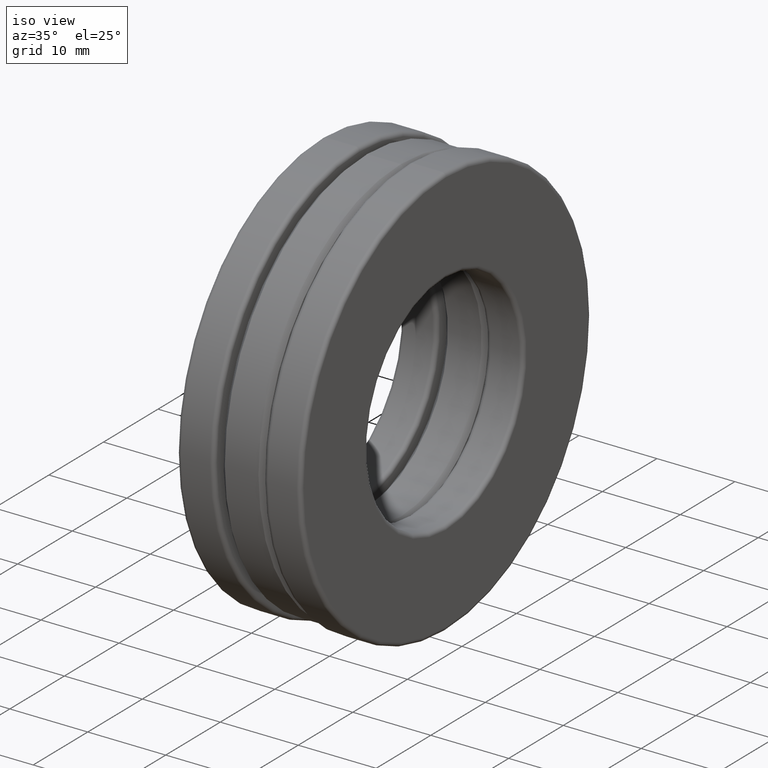
[diagram: clean part render]
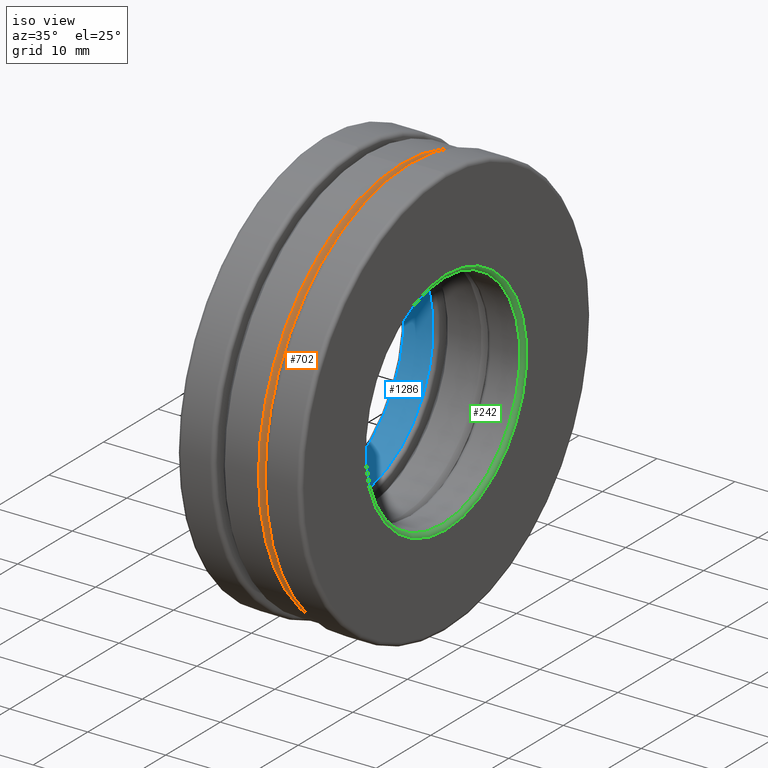
[diagram: same view with three faces highlighted in distinct colors, each labeled with its STEP entity id]
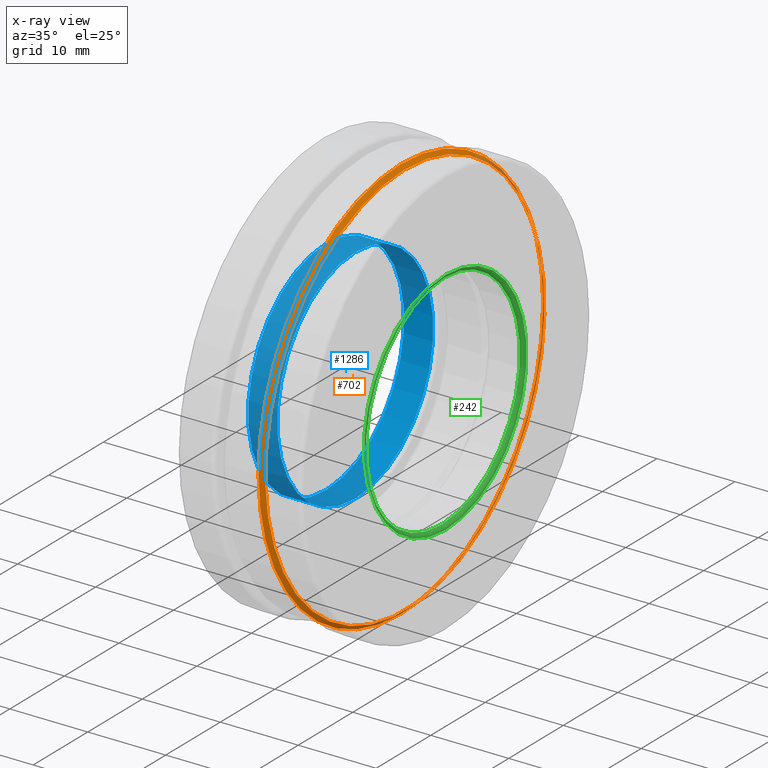
[diagram: x-ray of the same camera — body ghosted, the three highlighted faces saturated]
A machine part, iso view with three faces highlighted in distinct colors.
The next image is the same camera in x-ray (body ghosted, the three faces saturated) — at least one of them is partly hidden behind the body in this view.
Their STEP definitions:

[orange] entity #702 — the highlighted conical surface has half-angle 45 deg.
#7 = FACE_BOUND ( 'NONE', #813, .T. ) ;
#13 = CARTESIAN_POINT ( 'NONE',  ( 0.1050000000000000100, 0.0000000000000000000, 0.0000000000000000000 ) ) ;
#105 = CIRCLE ( 'NONE', #836, 1.006874999999999700 ) ;
#187 = EDGE_CURVE ( 'NONE', #752, #752, #105, .T. ) ;
#223 = FACE_OUTER_BOUND ( 'NONE', #1252, .T. ) ;
#228 = DIRECTION ( 'NONE',  ( 0.0000000000000000000, 0.0000000000000000000, 1.000000000000000000 ) ) ;
#279 = DIRECTION ( 'NONE',  ( 0.0000000000000000000, 0.0000000000000000000, 1.000000000000000000 ) ) ;
#314 = ORIENTED_EDGE ( 'NONE', *, *, #187, .T. ) ;
#344 = DIRECTION ( 'NONE',  ( -1.000000000000000000, -0.0000000000000000000, -0.0000000000000000000 ) ) ;
#508 = ORIENTED_EDGE ( 'NONE', *, *, #1374, .F. ) ;
#516 = VERTEX_POINT ( 'NONE', #887 ) ;
#684 = DIRECTION ( 'NONE',  ( 0.0000000000000000000, 0.0000000000000000000, 1.000000000000000000 ) ) ;
#702 = ADVANCED_FACE ( 'NONE', ( #7, #223 ), #1425, .T. ) ;
#752 = VERTEX_POINT ( 'NONE', #762 ) ;
#762 = CARTESIAN_POINT ( 'NONE',  ( 0.1050000000000000100, 0.0000000000000000000, 1.006874999999999700 ) ) ;
#813 = EDGE_LOOP ( 'NONE', ( #314 ) ) ;
#836 = AXIS2_PLACEMENT_3D ( 'NONE', #13, #344, #228 ) ;
#887 = CARTESIAN_POINT ( 'NONE',  ( 0.08500000000000002000, 0.0000000000000000000, 1.026875000000000000 ) ) ;
#1052 = DIRECTION ( 'NONE',  ( -1.000000000000000000, -0.0000000000000000000, -0.0000000000000000000 ) ) ;
#1077 = CARTESIAN_POINT ( 'NONE',  ( 0.08500000000000002000, 0.0000000000000000000, 0.0000000000000000000 ) ) ;
#1132 = CARTESIAN_POINT ( 'NONE',  ( 0.08500000000000002000, 0.0000000000000000000, 0.0000000000000000000 ) ) ;
#1197 = AXIS2_PLACEMENT_3D ( 'NONE', #1077, #1427, #279 ) ;
#1245 = CIRCLE ( 'NONE', #1197, 1.026875000000000000 ) ;
#1252 = EDGE_LOOP ( 'NONE', ( #508 ) ) ;
#1263 = AXIS2_PLACEMENT_3D ( 'NONE', #1132, #1052, #684 ) ;
#1374 = EDGE_CURVE ( 'NONE', #516, #516, #1245, .T. ) ;
#1425 = CONICAL_SURFACE ( 'NONE', #1263, 1.026875000000000000, 0.7853981633974533900 ) ;
#1427 = DIRECTION ( 'NONE',  ( -1.000000000000000000, -0.0000000000000000000, -0.0000000000000000000 ) ) ;

[blue] entity #1286 — the highlighted cylindrical surface (bore or boss wall) has radius 14.2875 mm, axis along (-1, -0, -0).
#43 = DIRECTION ( 'NONE',  ( -1.000000000000000000, -0.0000000000000000000, -0.0000000000000000000 ) ) ;
#48 = CYLINDRICAL_SURFACE ( 'NONE', #634, 0.5625000000000000000 ) ;
#177 = CARTESIAN_POINT ( 'NONE',  ( -0.2925000000000000400, 0.0000000000000000000, 0.5625000000000000000 ) ) ;
#182 = FACE_OUTER_BOUND ( 'NONE', #1213, .T. ) ;
#225 = DIRECTION ( 'NONE',  ( 0.0000000000000000000, 0.0000000000000000000, 1.000000000000000000 ) ) ;
#305 = CARTESIAN_POINT ( 'NONE',  ( -0.2925000000000000400, 0.0000000000000000000, 0.0000000000000000000 ) ) ;
#339 = AXIS2_PLACEMENT_3D ( 'NONE', #379, #947, #837 ) ;
#379 = CARTESIAN_POINT ( 'NONE',  ( -0.1450000000000000500, 0.0000000000000000000, 0.0000000000000000000 ) ) ;
#599 = EDGE_CURVE ( 'NONE', #1169, #1169, #955, .T. ) ;
#634 = AXIS2_PLACEMENT_3D ( 'NONE', #1065, #43, #225 ) ;
#709 = AXIS2_PLACEMENT_3D ( 'NONE', #305, #1115, #1441 ) ;
#806 = ORIENTED_EDGE ( 'NONE', *, *, #1416, .T. ) ;
#837 = DIRECTION ( 'NONE',  ( 0.0000000000000000000, 0.0000000000000000000, 1.000000000000000000 ) ) ;
#884 = VERTEX_POINT ( 'NONE', #177 ) ;
#947 = DIRECTION ( 'NONE',  ( -1.000000000000000000, -0.0000000000000000000, -0.0000000000000000000 ) ) ;
#955 = CIRCLE ( 'NONE', #339, 0.5625000000000000000 ) ;
#1033 = FACE_OUTER_BOUND ( 'NONE', #1251, .T. ) ;
#1065 = CARTESIAN_POINT ( 'NONE',  ( 0.0000000000000000000, 0.0000000000000000000, 0.0000000000000000000 ) ) ;
#1115 = DIRECTION ( 'NONE',  ( -1.000000000000000000, -0.0000000000000000000, -0.0000000000000000000 ) ) ;
#1169 = VERTEX_POINT ( 'NONE', #1216 ) ;
#1195 = ORIENTED_EDGE ( 'NONE', *, *, #599, .F. ) ;
#1213 = EDGE_LOOP ( 'NONE', ( #806 ) ) ;
#1216 = CARTESIAN_POINT ( 'NONE',  ( -0.1450000000000000500, 0.0000000000000000000, 0.5625000000000000000 ) ) ;
#1251 = EDGE_LOOP ( 'NONE', ( #1195 ) ) ;
#1286 = ADVANCED_FACE ( 'NONE', ( #182, #1033 ), #48, .F. ) ;
#1416 = EDGE_CURVE ( 'NONE', #884, #884, #1438, .T. ) ;
#1438 = CIRCLE ( 'NONE', #709, 0.5625000000000000000 ) ;
#1441 = DIRECTION ( 'NONE',  ( 0.0000000000000000000, 0.0000000000000000000, 1.000000000000000000 ) ) ;

[green] entity #242 — the highlighted toroidal blend (fillet) surface has major radius 14.7955 mm and minor (blend) radius 0.508 mm.
#55 = EDGE_CURVE ( 'NONE', #904, #904, #1200, .T. ) ;
#82 = VERTEX_POINT ( 'NONE', #880 ) ;
#139 = EDGE_LOOP ( 'NONE', ( #1419 ) ) ;
#164 = ORIENTED_EDGE ( 'NONE', *, *, #55, .T. ) ;
#183 = FACE_OUTER_BOUND ( 'NONE', #387, .T. ) ;
#193 = AXIS2_PLACEMENT_3D ( 'NONE', #451, #766, #1360 ) ;
#242 = ADVANCED_FACE ( 'NONE', ( #1338, #183 ), #1296, .T. ) ;
#342 = EDGE_CURVE ( 'NONE', #82, #82, #734, .T. ) ;
#350 = AXIS2_PLACEMENT_3D ( 'NONE', #693, #586, #374 ) ;
#374 = DIRECTION ( 'NONE',  ( 0.0000000000000000000, 0.0000000000000000000, 1.000000000000000000 ) ) ;
#387 = EDGE_LOOP ( 'NONE', ( #164 ) ) ;
#451 = CARTESIAN_POINT ( 'NONE',  ( 0.2925000000000000400, 0.0000000000000000000, 0.0000000000000000000 ) ) ;
#586 = DIRECTION ( 'NONE',  ( -1.000000000000000000, -0.0000000000000000000, -0.0000000000000000000 ) ) ;
#688 = AXIS2_PLACEMENT_3D ( 'NONE', #1379, #1048, #1046 ) ;
#693 = CARTESIAN_POINT ( 'NONE',  ( 0.3125000000000000000, 0.0000000000000000000, 0.0000000000000000000 ) ) ;
#734 = CIRCLE ( 'NONE', #350, 0.5824999999999999100 ) ;
#766 = DIRECTION ( 'NONE',  ( -1.000000000000000000, -0.0000000000000000000, -0.0000000000000000000 ) ) ;
#880 = CARTESIAN_POINT ( 'NONE',  ( 0.3125000000000000000, 0.0000000000000000000, 0.5824999999999999100 ) ) ;
#904 = VERTEX_POINT ( 'NONE', #1103 ) ;
#1046 = DIRECTION ( 'NONE',  ( 0.0000000000000000000, 0.0000000000000000000, 1.000000000000000000 ) ) ;
#1048 = DIRECTION ( 'NONE',  ( -1.000000000000000000, -0.0000000000000000000, -0.0000000000000000000 ) ) ;
#1103 = CARTESIAN_POINT ( 'NONE',  ( 0.2925000000000000400, 0.0000000000000000000, 0.5625000000000000000 ) ) ;
#1200 = CIRCLE ( 'NONE', #193, 0.5625000000000000000 ) ;
#1296 = TOROIDAL_SURFACE ( 'NONE', #688, 0.5824999999999999100, 0.01999999999999995900 ) ;
#1338 = FACE_OUTER_BOUND ( 'NONE', #139, .T. ) ;
#1360 = DIRECTION ( 'NONE',  ( 0.0000000000000000000, 0.0000000000000000000, 1.000000000000000000 ) ) ;
#1379 = CARTESIAN_POINT ( 'NONE',  ( 0.2925000000000000400, 0.0000000000000000000, 0.0000000000000000000 ) ) ;
#1419 = ORIENTED_EDGE ( 'NONE', *, *, #342, .F. ) ;